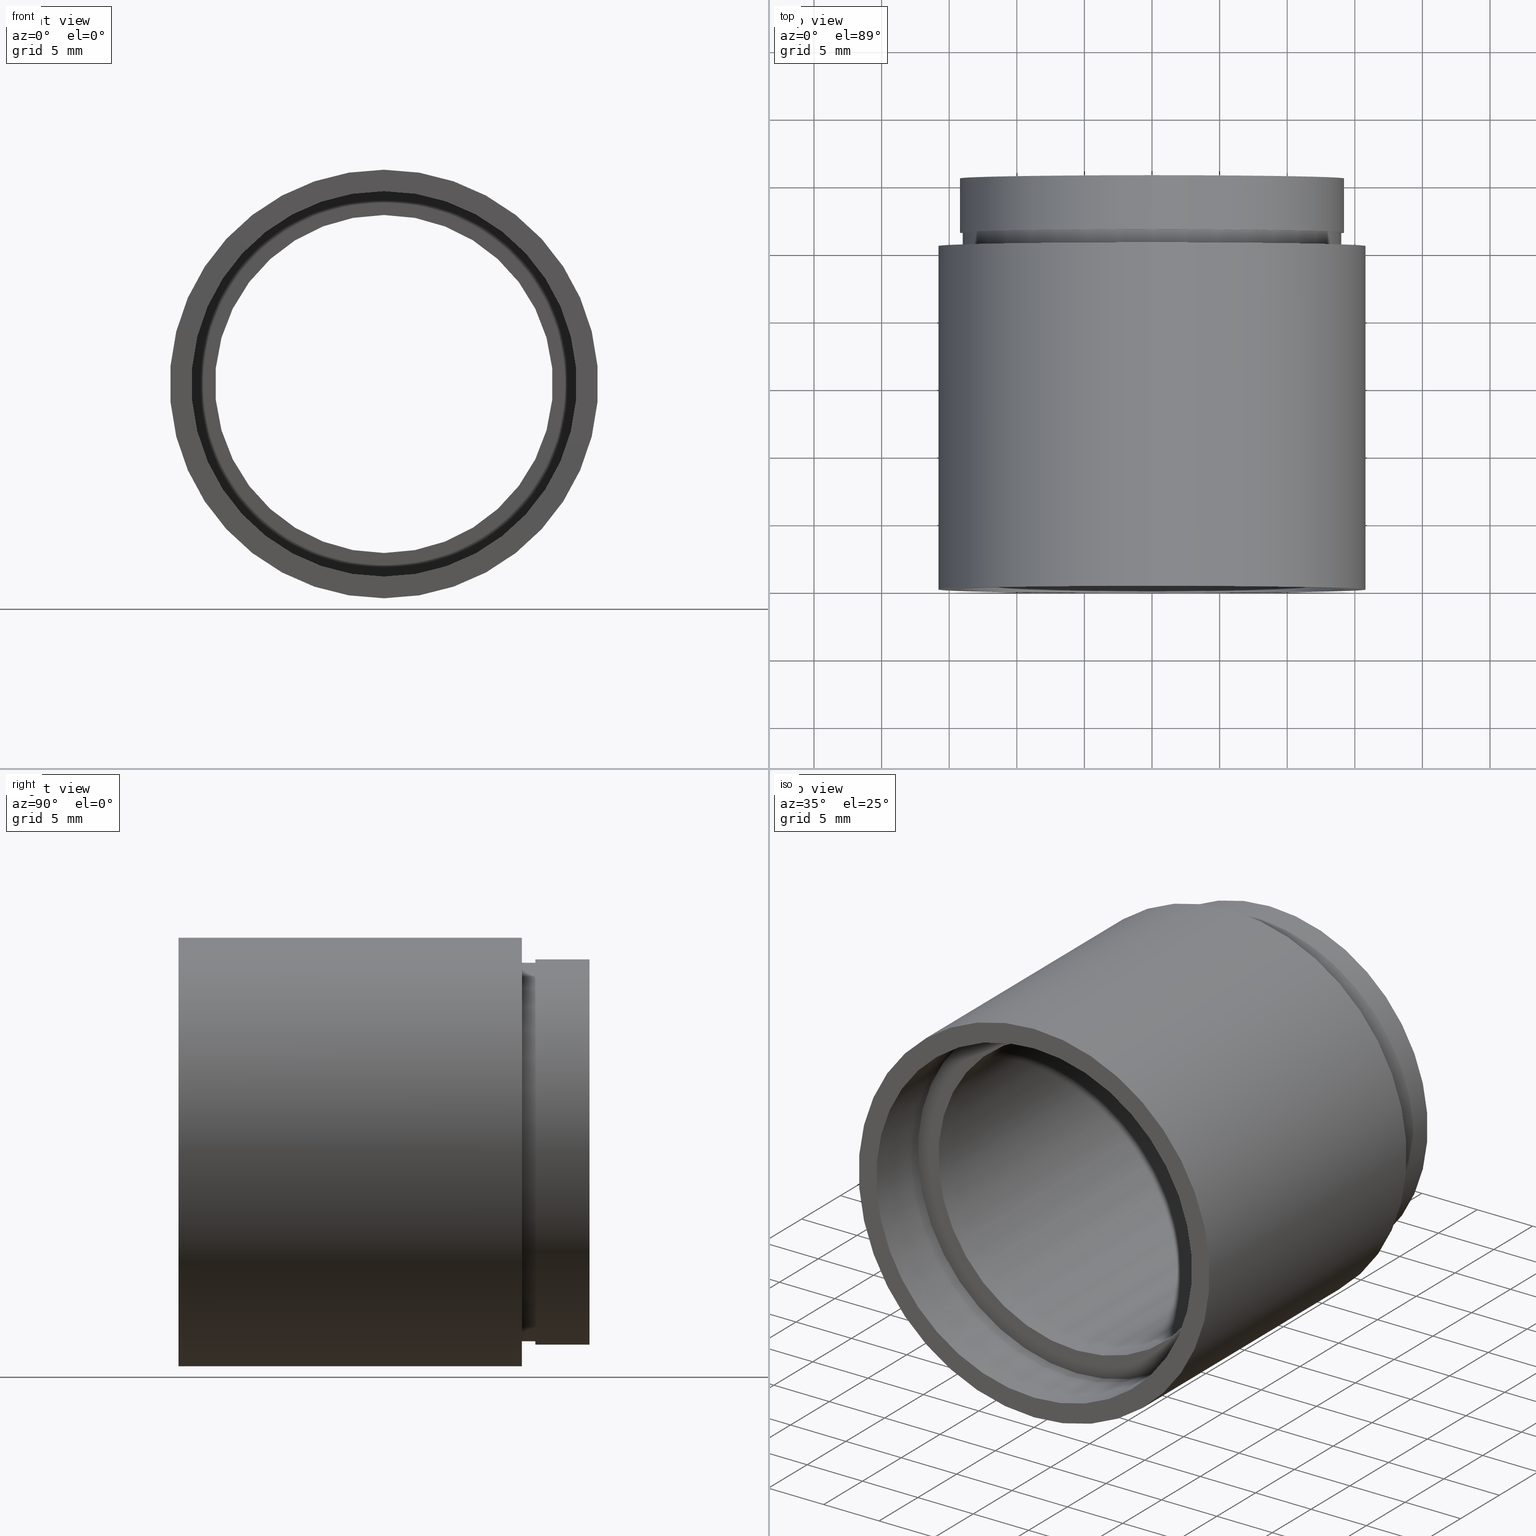
[diagram: canonical four-view strip — front | top / right | iso, engineering-drawing reading convention]
A machine part, canonical four-view strip (front | top / right | iso — engineering-drawing reading convention). The complete STEP part file that produces these views, byte-faithful:
ISO-10303-21;
HEADER;
FILE_DESCRIPTION (( 'STEP AP214' ),
    '1' );
FILE_NAME ('503047.STEP',
    '2019-09-06T06:18:34',
    ( '' ),
    ( '' ),
    'SwSTEP 2.0',
    'SolidWorks 2016',
    '' );
FILE_SCHEMA (( 'AUTOMOTIVE_DESIGN' ));
ENDSEC;

DATA;
#1 = FACE_OUTER_BOUND ( 'NONE', #2, .T. ) ;
#2 = EDGE_LOOP ( 'NONE', ( #51, #250, #337, #52 ) ) ;
#3 = CARTESIAN_POINT ( 'NONE',  ( 0.0000000000000000000, 25.39999999999997700, 0.0000000000000000000 ) ) ;
#4 = DIRECTION ( 'NONE',  ( 0.0000000000000000000, 0.0000000000000000000, 1.000000000000000000 ) ) ;
#5 = ORIENTED_EDGE ( 'NONE', *, *, #529, .F. ) ;
#6 = CARTESIAN_POINT ( 'NONE',  ( 1.745121688784980200E-015, 26.39999999999997700, -14.25000000000001600 ) ) ;
#7 = AXIS2_PLACEMENT_3D ( 'NONE', #320, #229, #574 ) ;
#8 = DIRECTION ( 'NONE',  ( -0.0000000000000000000, 1.000000000000000000, -0.0000000000000000000 ) ) ;
#9 = EDGE_CURVE ( 'NONE', #536, #546, #155, .T. ) ;
#10 = CARTESIAN_POINT ( 'NONE',  ( 0.0000000000000000000, 26.39999999999997700, 0.0000000000000000000 ) ) ;
#11 = ORIENTED_EDGE ( 'NONE', *, *, #190, .F. ) ;
#12 = CARTESIAN_POINT ( 'NONE',  ( 0.0000000000000000000, 26.39999999999997700, 14.25000000000001600 ) ) ;
#13 = ORIENTED_EDGE ( 'NONE', *, *, #104, .F. ) ;
#14 = DIRECTION ( 'NONE',  ( 0.0000000000000000000, 0.0000000000000000000, 1.000000000000000000 ) ) ;
#15 = CARTESIAN_POINT ( 'NONE',  ( 0.0000000000000000000, 161.3761669434274500, 0.0000000000000000000 ) ) ;
#16 = EDGE_CURVE ( 'NONE', #353, #343, #382, .T. ) ;
#17 = DIRECTION ( 'NONE',  ( 0.0000000000000000000, 0.0000000000000000000, 1.000000000000000000 ) ) ;
#18 = ORIENTED_EDGE ( 'NONE', *, *, #104, .T. ) ;
#19 = VERTEX_POINT ( 'NONE', #324 ) ;
#20 = FILL_AREA_STYLE_COLOUR ( '', #292 ) ;
#21 = UNCERTAINTY_MEASURE_WITH_UNIT (LENGTH_MEASURE( 1.000000000000000100E-005 ), #171, 'distance_accuracy_value', 'NONE');
#22 = EDGE_CURVE ( 'NONE', #592, #516, #286, .T. ) ;
#23 = CARTESIAN_POINT ( 'NONE',  ( 0.0000000000000000000, 30.39999999999998400, 0.0000000000000000000 ) ) ;
#24 = AXIS2_PLACEMENT_3D ( 'NONE', #102, #454, #594 ) ;
#25 = FACE_BOUND ( 'NONE', #526, .T. ) ;
#26 = MECHANICAL_DESIGN_GEOMETRIC_PRESENTATION_REPRESENTATION (  '', ( #333 ), #61 ) ;
#27 = ORIENTED_EDGE ( 'NONE', *, *, #70, .T. ) ;
#28 = VERTEX_POINT ( 'NONE', #281 ) ;
#29 = EDGE_CURVE ( 'NONE', #268, #328, #33, .T. ) ;
#30 = FACE_OUTER_BOUND ( 'NONE', #476, .T. ) ;
#31 = DIRECTION ( 'NONE',  ( -0.0000000000000000000, 1.000000000000000000, -0.0000000000000000000 ) ) ;
#32 = ADVANCED_FACE ( 'NONE', ( #398 ), #419, .F. ) ;
#33 = CIRCLE ( 'NONE', #89, 15.85000000000002100 ) ;
#34 = AXIS2_PLACEMENT_3D ( 'NONE', #351, #607, #608 ) ;
#35 = ORIENTED_EDGE ( 'NONE', *, *, #244, .F. ) ;
#36 = CARTESIAN_POINT ( 'NONE',  ( 0.0000000000000000000, 161.3761669434274500, 0.0000000000000000000 ) ) ;
#37 = VECTOR ( 'NONE', #602, 1000.000000000000000 ) ;
#38 = DIRECTION ( 'NONE',  ( 0.0000000000000000000, 0.0000000000000000000, 1.000000000000000000 ) ) ;
#39 = AXIS2_PLACEMENT_3D ( 'NONE', #472, #424, #231 ) ;
#40 = CARTESIAN_POINT ( 'NONE',  ( 1.530808498934193900E-015, 161.3761669434274500, -12.50000000000002000 ) ) ;
#41 = ADVANCED_FACE ( 'NONE', ( #507 ), #484, .F. ) ;
#42 = CIRCLE ( 'NONE', #313, 15.85000000000002100 ) ;
#43 = EDGE_LOOP ( 'NONE', ( #575, #124 ) ) ;
#44 = EDGE_CURVE ( 'NONE', #19, #28, #492, .T. ) ;
#45 = ORIENTED_EDGE ( 'NONE', *, *, #29, .T. ) ;
#46 =( LENGTH_UNIT ( ) NAMED_UNIT ( * ) SI_UNIT ( .MILLI., .METRE. ) );
#47 = CARTESIAN_POINT ( 'NONE',  ( 0.0000000000000000000, 161.3761669434274500, 0.0000000000000000000 ) ) ;
#48 = CIRCLE ( 'NONE', #214, 14.25000000000000000 ) ;
#49 =( NAMED_UNIT ( * ) PLANE_ANGLE_UNIT ( ) SI_UNIT ( $, .RADIAN. ) );
#50 =( NAMED_UNIT ( * ) SI_UNIT ( $, .STERADIAN. ) SOLID_ANGLE_UNIT ( ) );
#51 = ORIENTED_EDGE ( 'NONE', *, *, #127, .F. ) ;
#52 = ORIENTED_EDGE ( 'NONE', *, *, #460, .F. ) ;
#53 = AXIS2_PLACEMENT_3D ( 'NONE', #92, #522, #467 ) ;
#54 = CARTESIAN_POINT ( 'NONE',  ( 0.0000000000000000000, -2.775557561562891400E-014, 0.0000000000000000000 ) ) ;
#55 = CARTESIAN_POINT ( 'NONE',  ( 1.530808498934193900E-015, 30.39999999999998400, -12.50000000000002000 ) ) ;
#56 = DIRECTION ( 'NONE',  ( -0.0000000000000000000, 1.000000000000000000, -0.0000000000000000000 ) ) ;
#57 = AXIS2_PLACEMENT_3D ( 'NONE', #450, #158, #163 ) ;
#58 = FACE_OUTER_BOUND ( 'NONE', #329, .T. ) ;
#59 = VECTOR ( 'NONE', #519, 1000.000000000000000 ) ;
#60 = ORIENTED_EDGE ( 'NONE', *, *, #297, .T. ) ;
#61 =( GEOMETRIC_REPRESENTATION_CONTEXT ( 3 ) GLOBAL_UNCERTAINTY_ASSIGNED_CONTEXT ( ( #21 ) ) GLOBAL_UNIT_ASSIGNED_CONTEXT ( ( #171, #267, #368 ) ) REPRESENTATION_CONTEXT ( 'NONE', 'WORKASPACE' ) );
#62 = DIRECTION ( 'NONE',  ( -0.0000000000000000000, 1.000000000000000000, -0.0000000000000000000 ) ) ;
#63 = AXIS2_PLACEMENT_3D ( 'NONE', #96, #431, #483 ) ;
#64 = DIRECTION ( 'NONE',  ( 0.0000000000000000000, 0.0000000000000000000, 1.000000000000000000 ) ) ;
#65 = CYLINDRICAL_SURFACE ( 'NONE', #580, 14.35000000000001900 ) ;
#66 = PRESENTATION_STYLE_ASSIGNMENT (( #378 ) ) ;
#67 = ORIENTED_EDGE ( 'NONE', *, *, #244, .T. ) ;
#68 = CARTESIAN_POINT ( 'NONE',  ( 1.714505518806296600E-015, 161.3761669434274500, -14.00000000000001800 ) ) ;
#69 = ORIENTED_EDGE ( 'NONE', *, *, #103, .T. ) ;
#70 = EDGE_CURVE ( 'NONE', #261, #516, #275, .T. ) ;
#71 = LINE ( 'NONE', #470, #59 ) ;
#72 = FILL_AREA_STYLE ('',( #20 ) ) ;
#73 = ORIENTED_EDGE ( 'NONE', *, *, #323, .F. ) ;
#74 = VECTOR ( 'NONE', #597, 1000.000000000000000 ) ;
#75 = SURFACE_STYLE_FILL_AREA ( #543 ) ;
#76 =( NAMED_UNIT ( * ) SI_UNIT ( $, .STERADIAN. ) SOLID_ANGLE_UNIT ( ) );
#77 = EDGE_LOOP ( 'NONE', ( #528, #69, #493, #426 ) ) ;
#78 = EDGE_LOOP ( 'NONE', ( #361, #13, #27, #550 ) ) ;
#79 =( GEOMETRIC_REPRESENTATION_CONTEXT ( 3 ) GLOBAL_UNCERTAINTY_ASSIGNED_CONTEXT ( ( #439 ) ) GLOBAL_UNIT_ASSIGNED_CONTEXT ( ( #234, #138, #578 ) ) REPRESENTATION_CONTEXT ( 'NONE', 'WORKASPACE' ) );
#80 = LINE ( 'NONE', #506, #74 ) ;
#81 = FACE_BOUND ( 'NONE', #87, .T. ) ;
#82 = CARTESIAN_POINT ( 'NONE',  ( 1.745121688784980200E-015, 161.3761669434274500, -14.25000000000001600 ) ) ;
#83 = UNCERTAINTY_MEASURE_WITH_UNIT (LENGTH_MEASURE( 1.000000000000000100E-005 ), #364, 'distance_accuracy_value', 'NONE');
#84 = DIRECTION ( 'NONE',  ( -0.0000000000000000000, 1.000000000000000000, -0.0000000000000000000 ) ) ;
#85 = PRESENTATION_LAYER_ASSIGNMENT (  '', '', ( #202 ) ) ;
#86 = ADVANCED_FACE ( 'NONE', ( #120 ), #248, .F. ) ;
#87 = EDGE_LOOP ( 'NONE', ( #18, #570 ) ) ;
#88 = CARTESIAN_POINT ( 'NONE',  ( 0.0000000000000000000, 4.500000000000032000, 0.0000000000000000000 ) ) ;
#89 = AXIS2_PLACEMENT_3D ( 'NONE', #189, #288, #534 ) ;
#90 = DIRECTION ( 'NONE',  ( 0.0000000000000000000, -0.0000000000000000000, -1.000000000000000000 ) ) ;
#91 = CYLINDRICAL_SURFACE ( 'NONE', #408, 14.00000000000001800 ) ;
#92 = CARTESIAN_POINT ( 'NONE',  ( 0.0000000000000000000, 5.499999999999976900, 0.0000000000000000000 ) ) ;
#93 = EDGE_LOOP ( 'NONE', ( #373, #108 ) ) ;
#94 = DIRECTION ( 'NONE',  ( 0.0000000000000000000, 0.0000000000000000000, 1.000000000000000000 ) ) ;
#95 = PRESENTATION_LAYER_ASSIGNMENT (  '', '', ( #504 ) ) ;
#96 = CARTESIAN_POINT ( 'NONE',  ( 0.0000000000000000000, 161.3761669434274500, 0.0000000000000000000 ) ) ;
#97 = FILL_AREA_STYLE_COLOUR ( '', #177 ) ;
#98 = CIRCLE ( 'NONE', #24, 15.85000000000002100 ) ;
#99 = DIRECTION ( 'NONE',  ( 0.0000000000000000000, 0.0000000000000000000, 1.000000000000000000 ) ) ;
#100 = LINE ( 'NONE', #82, #193 ) ;
#101 =( NAMED_UNIT ( * ) PLANE_ANGLE_UNIT ( ) SI_UNIT ( $, .RADIAN. ) );
#102 = CARTESIAN_POINT ( 'NONE',  ( 0.0000000000000000000, -2.775557561562891400E-014, 0.0000000000000000000 ) ) ;
#103 = EDGE_CURVE ( 'NONE', #353, #243, #350, .T. ) ;
#104 = EDGE_CURVE ( 'NONE', #261, #485, #397, .T. ) ;
#105 = CARTESIAN_POINT ( 'NONE',  ( 0.0000000000000000000, 30.39999999999998400, 0.0000000000000000000 ) ) ;
#106 = COLOUR_RGB ( '',1.000000000000000000, 1.000000000000000000, 1.000000000000000000 ) ;
#107 = CARTESIAN_POINT ( 'NONE',  ( 0.0000000000000000000, 161.3761669434274500, 0.0000000000000000000 ) ) ;
#108 = ORIENTED_EDGE ( 'NONE', *, *, #176, .F. ) ;
#109 = CARTESIAN_POINT ( 'NONE',  ( 1.714505518806296600E-015, 25.39999999999997700, -14.00000000000001800 ) ) ;
#110 =( GEOMETRIC_REPRESENTATION_CONTEXT ( 3 ) GLOBAL_UNCERTAINTY_ASSIGNED_CONTEXT ( ( #331 ) ) GLOBAL_UNIT_ASSIGNED_CONTEXT ( ( #335, #101, #50 ) ) REPRESENTATION_CONTEXT ( 'NONE', 'WORKASPACE' ) );
#111 =( NAMED_UNIT ( * ) SI_UNIT ( $, .STERADIAN. ) SOLID_ANGLE_UNIT ( ) );
#112 = VECTOR ( 'NONE', #386, 1000.000000000000000 ) ;
#113 =( NAMED_UNIT ( * ) PLANE_ANGLE_UNIT ( ) SI_UNIT ( $, .RADIAN. ) );
#114 = ORIENTED_EDGE ( 'NONE', *, *, #603, .T. ) ;
#115 = EDGE_CURVE ( 'NONE', #546, #536, #464, .T. ) ;
#116 = CIRCLE ( 'NONE', #258, 14.35000000000001900 ) ;
#117 =( LENGTH_UNIT ( ) NAMED_UNIT ( * ) SI_UNIT ( .MILLI., .METRE. ) );
#118 = AXIS2_PLACEMENT_3D ( 'NONE', #88, #226, #223 ) ;
#119 = SURFACE_SIDE_STYLE ('',( #513 ) ) ;
#120 = FACE_OUTER_BOUND ( 'NONE', #367, .T. ) ;
#121 = ADVANCED_FACE ( 'NONE', ( #1 ), #139, .T. ) ;
#122 = ORIENTED_EDGE ( 'NONE', *, *, #44, .F. ) ;
#123 = DIRECTION ( 'NONE',  ( -0.0000000000000000000, 1.000000000000000000, -0.0000000000000000000 ) ) ;
#124 = ORIENTED_EDGE ( 'NONE', *, *, #16, .T. ) ;
#125 = UNCERTAINTY_MEASURE_WITH_UNIT (LENGTH_MEASURE( 1.000000000000000100E-005 ), #46, 'distance_accuracy_value', 'NONE');
#126 = LINE ( 'NONE', #509, #565 ) ;
#127 = EDGE_CURVE ( 'NONE', #503, #289, #100, .T. ) ;
#128 = DIRECTION ( 'NONE',  ( -0.0000000000000000000, 1.000000000000000000, 0.0000000000000000000 ) ) ;
#129 = CIRCLE ( 'NONE', #39, 12.50000000000002000 ) ;
#130 = FILL_AREA_STYLE_COLOUR ( '', #106 ) ;
#131 = EDGE_CURVE ( 'NONE', #422, #619, #116, .T. ) ;
#132 = ORIENTED_EDGE ( 'NONE', *, *, #560, .F. ) ;
#133 = ORIENTED_EDGE ( 'NONE', *, *, #480, .T. ) ;
#134 = DIRECTION ( 'NONE',  ( 0.0000000000000000000, -1.000000000000000000, 0.0000000000000000000 ) ) ;
#135 = CARTESIAN_POINT ( 'NONE',  ( 0.0000000000000000000, 4.500000000000032000, 0.0000000000000000000 ) ) ;
#136 = FILL_AREA_STYLE_COLOUR ( '', #237 ) ;
#137 = CIRCLE ( 'NONE', #440, 14.35000000000001900 ) ;
#138 =( NAMED_UNIT ( * ) PLANE_ANGLE_UNIT ( ) SI_UNIT ( $, .RADIAN. ) );
#139 = CYLINDRICAL_SURFACE ( 'NONE', #402, 14.25000000000001600 ) ;
#140 = ORIENTED_EDGE ( 'NONE', *, *, #131, .T. ) ;
#141 = DIRECTION ( 'NONE',  ( 0.0000000000000000000, 0.0000000000000000000, 1.000000000000000000 ) ) ;
#142 = AXIS2_PLACEMENT_3D ( 'NONE', #242, #477, #282 ) ;
#143 = LINE ( 'NONE', #447, #553 ) ;
#144 = EDGE_CURVE ( 'NONE', #343, #353, #618, .T. ) ;
#145 = DIRECTION ( 'NONE',  ( 0.0000000000000000000, -1.000000000000000000, 0.0000000000000000000 ) ) ;
#146 = PRESENTATION_STYLE_ASSIGNMENT (( #254 ) ) ;
#147 = DIRECTION ( 'NONE',  ( 0.0000000000000000000, 0.0000000000000000000, 1.000000000000000000 ) ) ;
#148 = COLOUR_RGB ( '',1.000000000000000000, 1.000000000000000000, 1.000000000000000000 ) ;
#149 = ORIENTED_EDGE ( 'NONE', *, *, #44, .T. ) ;
#150 = EDGE_LOOP ( 'NONE', ( #5, #515, #360, #421 ) ) ;
#151 = AXIS2_PLACEMENT_3D ( 'NONE', #417, #278, #468 ) ;
#152 = FACE_BOUND ( 'NONE', #43, .T. ) ;
#153 = CYLINDRICAL_SURFACE ( 'NONE', #390, 14.25000000000000000 ) ;
#154 =( LENGTH_UNIT ( ) NAMED_UNIT ( * ) SI_UNIT ( .MILLI., .METRE. ) );
#155 = CIRCLE ( 'NONE', #7, 14.00000000000001800 ) ;
#156 = ORIENTED_EDGE ( 'NONE', *, *, #144, .F. ) ;
#157 = EDGE_CURVE ( 'NONE', #516, #592, #239, .T. ) ;
#158 = DIRECTION ( 'NONE',  ( -0.0000000000000000000, 1.000000000000000000, -0.0000000000000000000 ) ) ;
#159 = COLOUR_RGB ( '',1.000000000000000000, 1.000000000000000000, 1.000000000000000000 ) ;
#160 = EDGE_CURVE ( 'NONE', #422, #265, #71, .T. ) ;
#161 = CARTESIAN_POINT ( 'NONE',  ( 0.0000000000000000000, 161.3761669434274500, 14.25000000000001600 ) ) ;
#162 = SURFACE_STYLE_FILL_AREA ( #198 ) ;
#163 = DIRECTION ( 'NONE',  ( 0.0000000000000000000, 0.0000000000000000000, 1.000000000000000000 ) ) ;
#164 = ORIENTED_EDGE ( 'NONE', *, *, #455, .F. ) ;
#165 = CLOSED_SHELL ( 'NONE', ( #220, #86, #32, #572, #423, #321, #216, #271, #225, #614, #369, #121, #521, #371, #416, #263, #413, #41 ) ) ;
#166 = LINE ( 'NONE', #68, #199 ) ;
#167 = APPLICATION_PROTOCOL_DEFINITION ( 'draft international standard', 'automotive_design', 1998, #215 ) ;
#168 = ORIENTED_EDGE ( 'NONE', *, *, #590, .T. ) ;
#169 = ORIENTED_EDGE ( 'NONE', *, *, #327, .F. ) ;
#170 = PRODUCT_DEFINITION_SHAPE ( 'NONE', 'NONE',  #279 ) ;
#171 =( LENGTH_UNIT ( ) NAMED_UNIT ( * ) SI_UNIT ( .MILLI., .METRE. ) );
#172 = PRESENTATION_LAYER_ASSIGNMENT (  '', '', ( #443 ) ) ;
#173 = SURFACE_STYLE_USAGE ( .BOTH. , #462 ) ;
#174 = CARTESIAN_POINT ( 'NONE',  ( 0.0000000000000000000, 5.499999999999976900, 0.0000000000000000000 ) ) ;
#175 = FACE_OUTER_BOUND ( 'NONE', #451, .T. ) ;
#176 = EDGE_CURVE ( 'NONE', #503, #508, #228, .T. ) ;
#177 = COLOUR_RGB ( '',1.000000000000000000, 1.000000000000000000, 1.000000000000000000 ) ;
#178 = EDGE_LOOP ( 'NONE', ( #45, #495 ) ) ;
#179 = DIRECTION ( 'NONE',  ( 0.0000000000000000000, 0.0000000000000000000, 1.000000000000000000 ) ) ;
#180 = VERTEX_POINT ( 'NONE', #270 ) ;
#181 = DIRECTION ( 'NONE',  ( -0.0000000000000000000, 1.000000000000000000, -0.0000000000000000000 ) ) ;
#182 = AXIS2_PLACEMENT_3D ( 'NONE', #514, #128, #179 ) ;
#183 = CARTESIAN_POINT ( 'NONE',  ( 0.0000000000000000000, 161.3761669434274500, 0.0000000000000000000 ) ) ;
#184 = DIRECTION ( 'NONE',  ( -0.0000000000000000000, 1.000000000000000000, -0.0000000000000000000 ) ) ;
#185 = COLOUR_RGB ( '',1.000000000000000000, 1.000000000000000000, 1.000000000000000000 ) ;
#186 = DIRECTION ( 'NONE',  ( -0.0000000000000000000, 1.000000000000000000, -0.0000000000000000000 ) ) ;
#187 = CARTESIAN_POINT ( 'NONE',  ( 0.0000000000000000000, 5.499999999999976900, 0.0000000000000000000 ) ) ;
#188 = ORIENTED_EDGE ( 'NONE', *, *, #359, .F. ) ;
#189 = CARTESIAN_POINT ( 'NONE',  ( 0.0000000000000000000, 25.39999999999997700, 0.0000000000000000000 ) ) ;
#190 = EDGE_CURVE ( 'NONE', #28, #268, #285, .T. ) ;
#191 = STYLED_ITEM ( 'NONE', ( #401 ), #305 ) ;
#192 = CARTESIAN_POINT ( 'NONE',  ( 0.0000000000000000000, 25.39999999999997700, 15.85000000000002100 ) ) ;
#193 = VECTOR ( 'NONE', #523, 1000.000000000000000 ) ;
#194 = DIRECTION ( 'NONE',  ( -0.0000000000000000000, 1.000000000000000000, -0.0000000000000000000 ) ) ;
#195 = STYLED_ITEM ( 'NONE', ( #599 ), #41 ) ;
#196 = EDGE_LOOP ( 'NONE', ( #222, #295, #428, #11 ) ) ;
#197 = CARTESIAN_POINT ( 'NONE',  ( 0.0000000000000000000, 30.39999999999998400, 0.0000000000000000000 ) ) ;
#198 = FILL_AREA_STYLE ('',( #136 ) ) ;
#199 = VECTOR ( 'NONE', #355, 1000.000000000000000 ) ;
#200 = EDGE_LOOP ( 'NONE', ( #168, #314, #132, #586 ) ) ;
#201 = DIRECTION ( 'NONE',  ( -0.0000000000000000000, 1.000000000000000000, -0.0000000000000000000 ) ) ;
#202 = STYLED_ITEM ( 'NONE', ( #146 ), #583 ) ;
#203 = SURFACE_STYLE_FILL_AREA ( #457 ) ;
#204 = SURFACE_SIDE_STYLE ('',( #274 ) ) ;
#205 = AXIS2_PLACEMENT_3D ( 'NONE', #530, #280, #576 ) ;
#206 = PLANE ( 'NONE',  #309 ) ;
#207 = FACE_OUTER_BOUND ( 'NONE', #562, .T. ) ;
#208 = CARTESIAN_POINT ( 'NONE',  ( 0.0000000000000000000, 26.39999999999997700, 0.0000000000000000000 ) ) ;
#209 = DIRECTION ( 'NONE',  ( 0.0000000000000000000, 0.0000000000000000000, 1.000000000000000000 ) ) ;
#210 = MECHANICAL_DESIGN_GEOMETRIC_PRESENTATION_REPRESENTATION (  '', ( #555 ), #596 ) ;
#211 = SURFACE_SIDE_STYLE ('',( #409 ) ) ;
#212 = AXIS2_PLACEMENT_3D ( 'NONE', #489, #8, #494 ) ;
#213 = ORIENTED_EDGE ( 'NONE', *, *, #160, .F. ) ;
#214 = AXIS2_PLACEMENT_3D ( 'NONE', #380, #184, #99 ) ;
#215 = APPLICATION_CONTEXT ( 'automotive_design' ) ;
#216 = ADVANCED_FACE ( 'NONE', ( #319, #81 ), #615, .F. ) ;
#217 = FILL_AREA_STYLE ('',( #318 ) ) ;
#218 = FACE_OUTER_BOUND ( 'NONE', #383, .T. ) ;
#219 = PRODUCT_CONTEXT ( 'NONE', #215, 'mechanical' ) ;
#220 = ADVANCED_FACE ( 'NONE', ( #207 ), #153, .F. ) ;
#221 = ORIENTED_EDGE ( 'NONE', *, *, #525, .F. ) ;
#222 = ORIENTED_EDGE ( 'NONE', *, *, #497, .T. ) ;
#223 = DIRECTION ( 'NONE',  ( 0.0000000000000000000, 0.0000000000000000000, 1.000000000000000000 ) ) ;
#224 = AXIS2_PLACEMENT_3D ( 'NONE', #372, #520, #38 ) ;
#225 = ADVANCED_FACE ( 'NONE', ( #25, #405 ), #332, .F. ) ;
#226 = DIRECTION ( 'NONE',  ( -0.0000000000000000000, 1.000000000000000000, -0.0000000000000000000 ) ) ;
#227 = SURFACE_STYLE_USAGE ( .BOTH. , #527 ) ;
#228 = CIRCLE ( 'NONE', #151, 14.25000000000001600 ) ;
#229 = DIRECTION ( 'NONE',  ( -0.0000000000000000000, 1.000000000000000000, -0.0000000000000000000 ) ) ;
#230 = ORIENTED_EDGE ( 'NONE', *, *, #272, .F. ) ;
#231 = DIRECTION ( 'NONE',  ( 0.0000000000000000000, 0.0000000000000000000, 1.000000000000000000 ) ) ;
#232 = DIRECTION ( 'NONE',  ( -0.0000000000000000000, 1.000000000000000000, -0.0000000000000000000 ) ) ;
#233 = MECHANICAL_DESIGN_GEOMETRIC_PRESENTATION_REPRESENTATION (  '', ( #191 ), #623 ) ;
#234 =( LENGTH_UNIT ( ) NAMED_UNIT ( * ) SI_UNIT ( .MILLI., .METRE. ) );
#235 = CARTESIAN_POINT ( 'NONE',  ( 14.00000000000001800, 25.39999999999998100, 0.0000000000000000000 ) ) ;
#236 = CARTESIAN_POINT ( 'NONE',  ( 0.0000000000000000000, 161.3761669434274500, 14.25000000000000000 ) ) ;
#237 = COLOUR_RGB ( '',1.000000000000000000, 1.000000000000000000, 1.000000000000000000 ) ;
#238 = AXIS2_PLACEMENT_3D ( 'NONE', #316, #415, #571 ) ;
#239 = CIRCLE ( 'NONE', #118, 14.25000000000000000 ) ;
#240 = DIRECTION ( 'NONE',  ( 0.0000000000000000000, 0.0000000000000000000, 1.000000000000000000 ) ) ;
#241 = VERTEX_POINT ( 'NONE', #620 ) ;
#242 = CARTESIAN_POINT ( 'NONE',  ( 0.0000000000000000000, 161.3761669434274500, 0.0000000000000000000 ) ) ;
#243 = VERTEX_POINT ( 'NONE', #55 ) ;
#244 = EDGE_CURVE ( 'NONE', #375, #243, #129, .T. ) ;
#245 = DIRECTION ( 'NONE',  ( 0.0000000000000000000, 0.0000000000000000000, 1.000000000000000000 ) ) ;
#246 = PRESENTATION_LAYER_ASSIGNMENT (  '', '', ( #191 ) ) ;
#247 = CARTESIAN_POINT ( 'NONE',  ( 0.0000000000000000000, 30.39999999999998400, 12.50000000000002000 ) ) ;
#248 = CYLINDRICAL_SURFACE ( 'NONE', #303, 14.35000000000001900 ) ;
#249 = CARTESIAN_POINT ( 'NONE',  ( 1.714505518806296600E-015, 26.39999999999997700, -14.00000000000001800 ) ) ;
#250 = ORIENTED_EDGE ( 'NONE', *, *, #176, .T. ) ;
#251 = PLANE ( 'NONE',  #317 ) ;
#252 = AXIS2_PLACEMENT_3D ( 'NONE', #235, #134, #90 ) ;
#253 = EDGE_LOOP ( 'NONE', ( #502, #149, #466, #188 ) ) ;
#254 = SURFACE_STYLE_USAGE ( .BOTH. , #204 ) ;
#255 = AXIS2_PLACEMENT_3D ( 'NONE', #105, #341, #64 ) ;
#256 = ORIENTED_EDGE ( 'NONE', *, *, #525, .T. ) ;
#257 = CARTESIAN_POINT ( 'NONE',  ( 12.50000000000002000, 30.39999999999998400, 0.0000000000000000000 ) ) ;
#258 = AXIS2_PLACEMENT_3D ( 'NONE', #465, #325, #365 ) ;
#259 = DIRECTION ( 'NONE',  ( -0.0000000000000000000, 1.000000000000000000, -0.0000000000000000000 ) ) ;
#260 = UNCERTAINTY_MEASURE_WITH_UNIT (LENGTH_MEASURE( 1.000000000000000100E-005 ), #438, 'distance_accuracy_value', 'NONE');
#261 = VERTEX_POINT ( 'NONE', #622 ) ;
#262 = DIRECTION ( 'NONE',  ( -0.0000000000000000000, 1.000000000000000000, -0.0000000000000000000 ) ) ;
#263 = ADVANCED_FACE ( 'NONE', ( #58 ), #65, .F. ) ;
#264 =( NAMED_UNIT ( * ) PLANE_ANGLE_UNIT ( ) SI_UNIT ( $, .RADIAN. ) );
#265 = VERTEX_POINT ( 'NONE', #374 ) ;
#266 = ORIENTED_EDGE ( 'NONE', *, *, #529, .T. ) ;
#267 =( NAMED_UNIT ( * ) PLANE_ANGLE_UNIT ( ) SI_UNIT ( $, .RADIAN. ) );
#268 = VERTEX_POINT ( 'NONE', #192 ) ;
#269 = AXIS2_PLACEMENT_3D ( 'NONE', #183, #84, #4 ) ;
#270 = CARTESIAN_POINT ( 'NONE',  ( 0.0000000000000000000, 26.39999999999997700, 14.00000000000001800 ) ) ;
#271 = ADVANCED_FACE ( 'NONE', ( #561 ), #349, .T. ) ;
#272 = EDGE_CURVE ( 'NONE', #485, #261, #48, .T. ) ;
#273 = AXIS2_PLACEMENT_3D ( 'NONE', #197, #340, #147 ) ;
#274 = SURFACE_STYLE_FILL_AREA ( #601 ) ;
#275 = LINE ( 'NONE', #236, #112 ) ;
#276 = DIRECTION ( 'NONE',  ( 0.0000000000000000000, 0.0000000000000000000, 1.000000000000000000 ) ) ;
#277 = ORIENTED_EDGE ( 'NONE', *, *, #157, .F. ) ;
#278 = DIRECTION ( 'NONE',  ( -0.0000000000000000000, 1.000000000000000000, -0.0000000000000000000 ) ) ;
#279 = PRODUCT_DEFINITION ( 'δ֪', '', #339, #593 ) ;
#280 = DIRECTION ( 'NONE',  ( -0.0000000000000000000, 1.000000000000000000, -0.0000000000000000000 ) ) ;
#281 = CARTESIAN_POINT ( 'NONE',  ( 0.0000000000000000000, -2.775557561562891400E-014, 15.85000000000002100 ) ) ;
#282 = DIRECTION ( 'NONE',  ( 0.0000000000000000000, 0.0000000000000000000, 1.000000000000000000 ) ) ;
#283 = AXIS2_PLACEMENT_3D ( 'NONE', #187, #384, #579 ) ;
#284 = FILL_AREA_STYLE ('',( #97 ) ) ;
#285 = LINE ( 'NONE', #609, #449 ) ;
#286 = CIRCLE ( 'NONE', #587, 14.25000000000000000 ) ;
#287 = CARTESIAN_POINT ( 'NONE',  ( 1.530808498934193900E-015, 5.499999999999976900, -12.50000000000002000 ) ) ;
#288 = DIRECTION ( 'NONE',  ( -0.0000000000000000000, 1.000000000000000000, -0.0000000000000000000 ) ) ;
#289 = VERTEX_POINT ( 'NONE', #585 ) ;
#290 = LINE ( 'NONE', #161, #37 ) ;
#291 = CARTESIAN_POINT ( 'NONE',  ( 1.941065176648557100E-015, 161.3761669434274500, -15.85000000000002100 ) ) ;
#292 = COLOUR_RGB ( '',1.000000000000000000, 1.000000000000000000, 1.000000000000000000 ) ;
#293 = DIRECTION ( 'NONE',  ( 0.0000000000000000000, 0.0000000000000000000, 1.000000000000000000 ) ) ;
#294 = MECHANICAL_DESIGN_GEOMETRIC_PRESENTATION_REPRESENTATION (  '', ( #600 ), #356 ) ;
#295 = ORIENTED_EDGE ( 'NONE', *, *, #453, .T. ) ;
#296 = ORIENTED_EDGE ( 'NONE', *, *, #131, .F. ) ;
#297 = EDGE_CURVE ( 'NONE', #343, #375, #511, .T. ) ;
#298 = CARTESIAN_POINT ( 'NONE',  ( 14.25000000000000000, 4.500000000000008000, 0.0000000000000000000 ) ) ;
#299 = SURFACE_STYLE_USAGE ( .BOTH. , #393 ) ;
#300 = DIRECTION ( 'NONE',  ( 0.0000000000000000000, -0.0000000000000000000, -1.000000000000000000 ) ) ;
#301 = ORIENTED_EDGE ( 'NONE', *, *, #70, .F. ) ;
#302 = DIRECTION ( 'NONE',  ( -0.0000000000000000000, 1.000000000000000000, -0.0000000000000000000 ) ) ;
#303 = AXIS2_PLACEMENT_3D ( 'NONE', #381, #539, #240 ) ;
#304 = DIRECTION ( 'NONE',  ( 0.0000000000000000000, -1.000000000000000000, 0.0000000000000000000 ) ) ;
#305 = ADVANCED_BREP_SHAPE_REPRESENTATION ( '503047', ( #583, #34 ), #461 ) ;
#306 = SURFACE_STYLE_USAGE ( .BOTH. , #211 ) ;
#307 = FILL_AREA_STYLE_COLOUR ( '', #159 ) ;
#308 = ORIENTED_EDGE ( 'NONE', *, *, #115, .T. ) ;
#309 = AXIS2_PLACEMENT_3D ( 'NONE', #257, #304, #300 ) ;
#310 = APPLICATION_CONTEXT ( 'automotive_design' ) ;
#311 = APPLICATION_PROTOCOL_DEFINITION ( 'draft international standard', 'automotive_design', 1998, #310 ) ;
#312 = EDGE_LOOP ( 'NONE', ( #73, #169 ) ) ;
#313 = AXIS2_PLACEMENT_3D ( 'NONE', #3, #56, #293 ) ;
#314 = ORIENTED_EDGE ( 'NONE', *, *, #127, .T. ) ;
#315 = CARTESIAN_POINT ( 'NONE',  ( 0.0000000000000000000, 161.3761669434274500, 0.0000000000000000000 ) ) ;
#316 = CARTESIAN_POINT ( 'NONE',  ( 0.0000000000000000000, 2.775557561562891400E-014, 0.0000000000000000000 ) ) ;
#317 = AXIS2_PLACEMENT_3D ( 'NONE', #336, #441, #14 ) ;
#318 = FILL_AREA_STYLE_COLOUR ( '', #148 ) ;
#319 = FACE_OUTER_BOUND ( 'NONE', #556, .T. ) ;
#320 = CARTESIAN_POINT ( 'NONE',  ( 0.0000000000000000000, 25.39999999999997700, 0.0000000000000000000 ) ) ;
#321 = ADVANCED_FACE ( 'NONE', ( #549 ), #584, .T. ) ;
#322 = EDGE_LOOP ( 'NONE', ( #35, #164 ) ) ;
#323 = EDGE_CURVE ( 'NONE', #241, #265, #589, .T. ) ;
#324 = CARTESIAN_POINT ( 'NONE',  ( 1.941065176648557100E-015, -2.775557561562891400E-014, -15.85000000000002100 ) ) ;
#325 = DIRECTION ( 'NONE',  ( -0.0000000000000000000, 1.000000000000000000, -0.0000000000000000000 ) ) ;
#326 = CARTESIAN_POINT ( 'NONE',  ( 0.0000000000000000000, 161.3761669434274500, 12.50000000000002000 ) ) ;
#327 = EDGE_CURVE ( 'NONE', #265, #241, #342, .T. ) ;
#328 = VERTEX_POINT ( 'NONE', #532 ) ;
#329 = EDGE_LOOP ( 'NONE', ( #213, #577, #114, #518 ) ) ;
#330 = SURFACE_STYLE_USAGE ( .BOTH. , #621 ) ;
#331 = UNCERTAINTY_MEASURE_WITH_UNIT (LENGTH_MEASURE( 1.000000000000000100E-005 ), #335, 'distance_accuracy_value', 'NONE');
#332 = PLANE ( 'NONE',  #252 ) ;
#333 = STYLED_ITEM ( 'NONE', ( #533 ), #121 ) ;
#334 = PRESENTATION_STYLE_ASSIGNMENT (( #299 ) ) ;
#335 =( LENGTH_UNIT ( ) NAMED_UNIT ( * ) SI_UNIT ( .MILLI., .METRE. ) );
#336 = CARTESIAN_POINT ( 'NONE',  ( 12.50000000000002000, 5.499999999999984000, 0.0000000000000000000 ) ) ;
#337 = ORIENTED_EDGE ( 'NONE', *, *, #611, .T. ) ;
#338 = CARTESIAN_POINT ( 'NONE',  ( 1.745121688784978200E-015, 2.775557561562891400E-014, -14.25000000000000000 ) ) ;
#339 = PRODUCT_DEFINITION_FORMATION_WITH_SPECIFIED_SOURCE ( '�κ�', '', #616, .NOT_KNOWN. ) ;
#340 = DIRECTION ( 'NONE',  ( -0.0000000000000000000, 1.000000000000000000, -0.0000000000000000000 ) ) ;
#341 = DIRECTION ( 'NONE',  ( -0.0000000000000000000, 1.000000000000000000, -0.0000000000000000000 ) ) ;
#342 = CIRCLE ( 'NONE', #433, 14.35000000000001900 ) ;
#343 = VERTEX_POINT ( 'NONE', #430 ) ;
#344 = CARTESIAN_POINT ( 'NONE',  ( 1.757368156776454300E-015, 4.499999999999976000, -14.35000000000001900 ) ) ;
#345 = VERTEX_POINT ( 'NONE', #481 ) ;
#346 = CYLINDRICAL_SURFACE ( 'NONE', #370, 14.00000000000001800 ) ;
#347 = AXIS2_PLACEMENT_3D ( 'NONE', #174, #569, #566 ) ;
#348 = DIRECTION ( 'NONE',  ( 0.0000000000000000000, 0.0000000000000000000, 1.000000000000000000 ) ) ;
#349 = CYLINDRICAL_SURFACE ( 'NONE', #142, 15.85000000000002100 ) ;
#350 = LINE ( 'NONE', #40, #358 ) ;
#351 = CARTESIAN_POINT ( 'NONE',  ( 0.0000000000000000000, 0.0000000000000000000, 0.0000000000000000000 ) ) ;
#352 = AXIS2_PLACEMENT_3D ( 'NONE', #15, #406, #209 ) ;
#353 = VERTEX_POINT ( 'NONE', #287 ) ;
#354 = ORIENTED_EDGE ( 'NONE', *, *, #103, .F. ) ;
#355 = DIRECTION ( 'NONE',  ( -0.0000000000000000000, 1.000000000000000000, -0.0000000000000000000 ) ) ;
#356 =( GEOMETRIC_REPRESENTATION_CONTEXT ( 3 ) GLOBAL_UNCERTAINTY_ASSIGNED_CONTEXT ( ( #125 ) ) GLOBAL_UNIT_ASSIGNED_CONTEXT ( ( #46, #49, #425 ) ) REPRESENTATION_CONTEXT ( 'NONE', 'WORKASPACE' ) );
#357 = CARTESIAN_POINT ( 'NONE',  ( 0.0000000000000000000, 161.3761669434274500, 0.0000000000000000000 ) ) ;
#358 = VECTOR ( 'NONE', #181, 1000.000000000000000 ) ;
#359 = EDGE_CURVE ( 'NONE', #328, #268, #42, .T. ) ;
#360 = ORIENTED_EDGE ( 'NONE', *, *, #554, .T. ) ;
#361 = ORIENTED_EDGE ( 'NONE', *, *, #617, .F. ) ;
#362 = MECHANICAL_DESIGN_GEOMETRIC_PRESENTATION_REPRESENTATION (  '', ( #202 ), #429 ) ;
#363 = FACE_OUTER_BOUND ( 'NONE', #200, .T. ) ;
#364 =( LENGTH_UNIT ( ) NAMED_UNIT ( * ) SI_UNIT ( .MILLI., .METRE. ) );
#365 = DIRECTION ( 'NONE',  ( 0.0000000000000000000, 0.0000000000000000000, 1.000000000000000000 ) ) ;
#366 = PRESENTATION_LAYER_ASSIGNMENT (  '', '', ( #600 ) ) ;
#367 = EDGE_LOOP ( 'NONE', ( #296, #385, #391, #437 ) ) ;
#368 =( NAMED_UNIT ( * ) SI_UNIT ( $, .STERADIAN. ) SOLID_ANGLE_UNIT ( ) );
#369 = ADVANCED_FACE ( 'NONE', ( #624, #379 ), #537, .F. ) ;
#370 = AXIS2_PLACEMENT_3D ( 'NONE', #357, #595, #348 ) ;
#371 = ADVANCED_FACE ( 'NONE', ( #218 ), #434, .F. ) ;
#372 = CARTESIAN_POINT ( 'NONE',  ( 0.0000000000000000000, 25.39999999999997700, 0.0000000000000000000 ) ) ;
#373 = ORIENTED_EDGE ( 'NONE', *, *, #590, .F. ) ;
#374 = CARTESIAN_POINT ( 'NONE',  ( 1.757368156776454300E-015, 5.499999999999976900, -14.35000000000001900 ) ) ;
#375 = VERTEX_POINT ( 'NONE', #247 ) ;
#376 = DIRECTION ( 'NONE',  ( -0.0000000000000000000, 1.000000000000000000, -0.0000000000000000000 ) ) ;
#377 = DIRECTION ( 'NONE',  ( -0.0000000000000000000, 1.000000000000000000, -0.0000000000000000000 ) ) ;
#378 = SURFACE_STYLE_USAGE ( .BOTH. , #581 ) ;
#379 = FACE_BOUND ( 'NONE', #487, .T. ) ;
#380 = CARTESIAN_POINT ( 'NONE',  ( 0.0000000000000000000, 2.775557561562891400E-014, 0.0000000000000000000 ) ) ;
#381 = CARTESIAN_POINT ( 'NONE',  ( 0.0000000000000000000, 161.3761669434274500, 0.0000000000000000000 ) ) ;
#382 = CIRCLE ( 'NONE', #53, 12.50000000000002000 ) ;
#383 = EDGE_LOOP ( 'NONE', ( #354, #156, #60, #67 ) ) ;
#384 = DIRECTION ( 'NONE',  ( -0.0000000000000000000, 1.000000000000000000, -0.0000000000000000000 ) ) ;
#385 = ORIENTED_EDGE ( 'NONE', *, *, #160, .T. ) ;
#386 = DIRECTION ( 'NONE',  ( -0.0000000000000000000, 1.000000000000000000, -0.0000000000000000000 ) ) ;
#387 = FACE_OUTER_BOUND ( 'NONE', #150, .T. ) ;
#388 = DIRECTION ( 'NONE',  ( 0.0000000000000000000, 0.0000000000000000000, 1.000000000000000000 ) ) ;
#389 = CARTESIAN_POINT ( 'NONE',  ( 0.0000000000000000000, 4.500000000000032000, 14.25000000000000000 ) ) ;
#390 = AXIS2_PLACEMENT_3D ( 'NONE', #315, #31, #94 ) ;
#391 = ORIENTED_EDGE ( 'NONE', *, *, #327, .T. ) ;
#392 = DIRECTION ( 'NONE',  ( 0.0000000000000000000, 0.0000000000000000000, 1.000000000000000000 ) ) ;
#393 = SURFACE_SIDE_STYLE ('',( #162 ) ) ;
#394 = CARTESIAN_POINT ( 'NONE',  ( 0.0000000000000000000, 25.39999999999997700, 14.00000000000001800 ) ) ;
#395 = PRESENTATION_LAYER_ASSIGNMENT (  '', '', ( #555 ) ) ;
#396 = VECTOR ( 'NONE', #232, 1000.000000000000000 ) ;
#397 = CIRCLE ( 'NONE', #238, 14.25000000000000000 ) ;
#398 = FACE_OUTER_BOUND ( 'NONE', #77, .T. ) ;
#399 = CARTESIAN_POINT ( 'NONE',  ( 0.0000000000000000000, 4.499999999999976000, 14.35000000000001900 ) ) ;
#400 = ORIENTED_EDGE ( 'NONE', *, *, #469, .T. ) ;
#401 = PRESENTATION_STYLE_ASSIGNMENT (( #173 ) ) ;
#402 = AXIS2_PLACEMENT_3D ( 'NONE', #36, #123, #276 ) ;
#403 =( LENGTH_UNIT ( ) NAMED_UNIT ( * ) SI_UNIT ( .MILLI., .METRE. ) );
#404 =( NAMED_UNIT ( * ) SI_UNIT ( $, .STERADIAN. ) SOLID_ANGLE_UNIT ( ) );
#405 = FACE_OUTER_BOUND ( 'NONE', #178, .T. ) ;
#406 = DIRECTION ( 'NONE',  ( -0.0000000000000000000, 1.000000000000000000, -0.0000000000000000000 ) ) ;
#407 = ORIENTED_EDGE ( 'NONE', *, *, #22, .T. ) ;
#408 = AXIS2_PLACEMENT_3D ( 'NONE', #107, #62, #392 ) ;
#409 = SURFACE_STYLE_FILL_AREA ( #72 ) ;
#410 = AXIS2_PLACEMENT_3D ( 'NONE', #582, #545, #588 ) ;
#411 = VERTEX_POINT ( 'NONE', #249 ) ;
#412 = FILL_AREA_STYLE ('',( #130 ) ) ;
#413 = ADVANCED_FACE ( 'NONE', ( #463, #456 ), #435, .F. ) ;
#414 =( NAMED_UNIT ( * ) SI_UNIT ( $, .STERADIAN. ) SOLID_ANGLE_UNIT ( ) );
#415 = DIRECTION ( 'NONE',  ( -0.0000000000000000000, 1.000000000000000000, -0.0000000000000000000 ) ) ;
#416 = ADVANCED_FACE ( 'NONE', ( #568, #152 ), #251, .F. ) ;
#417 = CARTESIAN_POINT ( 'NONE',  ( 0.0000000000000000000, 26.39999999999997700, 0.0000000000000000000 ) ) ;
#418 = CIRCLE ( 'NONE', #57, 14.00000000000001800 ) ;
#419 = CYLINDRICAL_SURFACE ( 'NONE', #269, 12.50000000000002000 ) ;
#420 = AXIS2_PLACEMENT_3D ( 'NONE', #54, #186, #486 ) ;
#421 = ORIENTED_EDGE ( 'NONE', *, *, #469, .F. ) ;
#422 = VERTEX_POINT ( 'NONE', #344 ) ;
#423 = ADVANCED_FACE ( 'NONE', ( #30 ), #91, .T. ) ;
#424 = DIRECTION ( 'NONE',  ( -0.0000000000000000000, 1.000000000000000000, -0.0000000000000000000 ) ) ;
#425 =( NAMED_UNIT ( * ) SI_UNIT ( $, .STERADIAN. ) SOLID_ANGLE_UNIT ( ) );
#426 = ORIENTED_EDGE ( 'NONE', *, *, #297, .F. ) ;
#427 = SURFACE_STYLE_USAGE ( .BOTH. , #119 ) ;
#428 = ORIENTED_EDGE ( 'NONE', *, *, #29, .F. ) ;
#429 =( GEOMETRIC_REPRESENTATION_CONTEXT ( 3 ) GLOBAL_UNCERTAINTY_ASSIGNED_CONTEXT ( ( #573 ) ) GLOBAL_UNIT_ASSIGNED_CONTEXT ( ( #403, #113, #404 ) ) REPRESENTATION_CONTEXT ( 'NONE', 'WORKASPACE' ) );
#430 = CARTESIAN_POINT ( 'NONE',  ( 0.0000000000000000000, 5.499999999999976900, 12.50000000000002000 ) ) ;
#431 = DIRECTION ( 'NONE',  ( -0.0000000000000000000, 1.000000000000000000, -0.0000000000000000000 ) ) ;
#432 = CARTESIAN_POINT ( 'NONE',  ( 0.0000000000000000000, 5.499999999999976900, 0.0000000000000000000 ) ) ;
#433 = AXIS2_PLACEMENT_3D ( 'NONE', #432, #479, #141 ) ;
#434 = CYLINDRICAL_SURFACE ( 'NONE', #212, 12.50000000000002000 ) ;
#435 = PLANE ( 'NONE',  #499 ) ;
#436 = PRESENTATION_STYLE_ASSIGNMENT (( #427 ) ) ;
#437 = ORIENTED_EDGE ( 'NONE', *, *, #603, .F. ) ;
#438 =( LENGTH_UNIT ( ) NAMED_UNIT ( * ) SI_UNIT ( .MILLI., .METRE. ) );
#439 = UNCERTAINTY_MEASURE_WITH_UNIT (LENGTH_MEASURE( 1.000000000000000100E-005 ), #234, 'distance_accuracy_value', 'NONE');
#440 = AXIS2_PLACEMENT_3D ( 'NONE', #488, #194, #245 ) ;
#441 = DIRECTION ( 'NONE',  ( -0.0000000000000000000, 1.000000000000000000, 0.0000000000000000000 ) ) ;
#442 = ORIENTED_EDGE ( 'NONE', *, *, #460, .T. ) ;
#443 = STYLED_ITEM ( 'NONE', ( #334 ), #371 ) ;
#444 = DIRECTION ( 'NONE',  ( 0.0000000000000000000, 0.0000000000000000000, 1.000000000000000000 ) ) ;
#445 = CIRCLE ( 'NONE', #474, 14.25000000000001600 ) ;
#446 = FILL_AREA_STYLE_COLOUR ( '', #524 ) ;
#447 = CARTESIAN_POINT ( 'NONE',  ( 0.0000000000000000000, 161.3761669434274500, 14.35000000000001900 ) ) ;
#448 = CIRCLE ( 'NONE', #564, 14.25000000000001600 ) ;
#449 = VECTOR ( 'NONE', #613, 1000.000000000000000 ) ;
#450 = CARTESIAN_POINT ( 'NONE',  ( 0.0000000000000000000, 26.39999999999997700, 0.0000000000000000000 ) ) ;
#451 = EDGE_LOOP ( 'NONE', ( #535, #442 ) ) ;
#452 = ORIENTED_EDGE ( 'NONE', *, *, #22, .F. ) ;
#453 = EDGE_CURVE ( 'NONE', #19, #328, #500, .T. ) ;
#454 = DIRECTION ( 'NONE',  ( -0.0000000000000000000, 1.000000000000000000, -0.0000000000000000000 ) ) ;
#455 = EDGE_CURVE ( 'NONE', #243, #375, #610, .T. ) ;
#456 = FACE_OUTER_BOUND ( 'NONE', #552, .T. ) ;
#457 = FILL_AREA_STYLE ('',( #307 ) ) ;
#458 = ORIENTED_EDGE ( 'NONE', *, *, #497, .F. ) ;
#459 = SHAPE_DEFINITION_REPRESENTATION ( #170, #305 ) ;
#460 = EDGE_CURVE ( 'NONE', #289, #345, #471, .T. ) ;
#461 =( GEOMETRIC_REPRESENTATION_CONTEXT ( 3 ) GLOBAL_UNCERTAINTY_ASSIGNED_CONTEXT ( ( #512 ) ) GLOBAL_UNIT_ASSIGNED_CONTEXT ( ( #117, #264, #414 ) ) REPRESENTATION_CONTEXT ( 'NONE', 'WORKASPACE' ) );
#462 = SURFACE_SIDE_STYLE ('',( #203 ) ) ;
#463 = FACE_BOUND ( 'NONE', #538, .T. ) ;
#464 = CIRCLE ( 'NONE', #224, 14.00000000000001800 ) ;
#465 = CARTESIAN_POINT ( 'NONE',  ( 0.0000000000000000000, 4.499999999999976000, 0.0000000000000000000 ) ) ;
#466 = ORIENTED_EDGE ( 'NONE', *, *, #190, .T. ) ;
#467 = DIRECTION ( 'NONE',  ( 0.0000000000000000000, 0.0000000000000000000, 1.000000000000000000 ) ) ;
#468 = DIRECTION ( 'NONE',  ( 0.0000000000000000000, 0.0000000000000000000, 1.000000000000000000 ) ) ;
#469 = EDGE_CURVE ( 'NONE', #411, #180, #604, .T. ) ;
#470 = CARTESIAN_POINT ( 'NONE',  ( 1.757368156776454300E-015, 161.3761669434274500, -14.35000000000001900 ) ) ;
#471 = CIRCLE ( 'NONE', #273, 14.25000000000001600 ) ;
#472 = CARTESIAN_POINT ( 'NONE',  ( 0.0000000000000000000, 30.39999999999998400, 0.0000000000000000000 ) ) ;
#473 = SURFACE_STYLE_FILL_AREA ( #284 ) ;
#474 = AXIS2_PLACEMENT_3D ( 'NONE', #208, #302, #17 ) ;
#475 = DIRECTION ( 'NONE',  ( 0.0000000000000000000, 0.0000000000000000000, 1.000000000000000000 ) ) ;
#476 = EDGE_LOOP ( 'NONE', ( #308, #266, #221, #563 ) ) ;
#477 = DIRECTION ( 'NONE',  ( -0.0000000000000000000, 1.000000000000000000, -0.0000000000000000000 ) ) ;
#478 = FILL_AREA_STYLE_COLOUR ( '', #185 ) ;
#479 = DIRECTION ( 'NONE',  ( -0.0000000000000000000, 1.000000000000000000, -0.0000000000000000000 ) ) ;
#480 = EDGE_CURVE ( 'NONE', #619, #422, #137, .T. ) ;
#481 = CARTESIAN_POINT ( 'NONE',  ( 0.0000000000000000000, 30.39999999999998400, 14.25000000000001600 ) ) ;
#482 = VECTOR ( 'NONE', #201, 1000.000000000000000 ) ;
#483 = DIRECTION ( 'NONE',  ( 0.0000000000000000000, 0.0000000000000000000, 1.000000000000000000 ) ) ;
#484 = CYLINDRICAL_SURFACE ( 'NONE', #63, 14.25000000000000000 ) ;
#485 = VERTEX_POINT ( 'NONE', #338 ) ;
#486 = DIRECTION ( 'NONE',  ( 0.0000000000000000000, 0.0000000000000000000, 1.000000000000000000 ) ) ;
#487 = EDGE_LOOP ( 'NONE', ( #256, #400 ) ) ;
#488 = CARTESIAN_POINT ( 'NONE',  ( 0.0000000000000000000, 4.499999999999976000, 0.0000000000000000000 ) ) ;
#489 = CARTESIAN_POINT ( 'NONE',  ( 0.0000000000000000000, 161.3761669434274500, 0.0000000000000000000 ) ) ;
#490 = MECHANICAL_DESIGN_GEOMETRIC_PRESENTATION_REPRESENTATION (  '', ( #195 ), #110 ) ;
#491 =( NAMED_UNIT ( * ) PLANE_ANGLE_UNIT ( ) SI_UNIT ( $, .RADIAN. ) );
#492 = CIRCLE ( 'NONE', #420, 15.85000000000002100 ) ;
#493 = ORIENTED_EDGE ( 'NONE', *, *, #455, .T. ) ;
#494 = DIRECTION ( 'NONE',  ( 0.0000000000000000000, 0.0000000000000000000, 1.000000000000000000 ) ) ;
#495 = ORIENTED_EDGE ( 'NONE', *, *, #359, .T. ) ;
#496 = DIRECTION ( 'NONE',  ( -0.0000000000000000000, 1.000000000000000000, -0.0000000000000000000 ) ) ;
#497 = EDGE_CURVE ( 'NONE', #28, #19, #98, .T. ) ;
#498 =( NAMED_UNIT ( * ) PLANE_ANGLE_UNIT ( ) SI_UNIT ( $, .RADIAN. ) );
#499 = AXIS2_PLACEMENT_3D ( 'NONE', #298, #145, #591 ) ;
#500 = LINE ( 'NONE', #291, #482 ) ;
#501 = SURFACE_STYLE_FILL_AREA ( #217 ) ;
#502 = ORIENTED_EDGE ( 'NONE', *, *, #453, .F. ) ;
#503 = VERTEX_POINT ( 'NONE', #6 ) ;
#504 = STYLED_ITEM ( 'NONE', ( #66 ), #32 ) ;
#505 = CARTESIAN_POINT ( 'NONE',  ( 1.745121688784978200E-015, 4.500000000000032000, -14.25000000000000000 ) ) ;
#506 = CARTESIAN_POINT ( 'NONE',  ( 0.0000000000000000000, 161.3761669434274500, 14.00000000000001800 ) ) ;
#507 = FACE_OUTER_BOUND ( 'NONE', #78, .T. ) ;
#508 = VERTEX_POINT ( 'NONE', #12 ) ;
#509 = CARTESIAN_POINT ( 'NONE',  ( 1.745121688784978200E-015, 161.3761669434274500, -14.25000000000000000 ) ) ;
#510 = MECHANICAL_DESIGN_GEOMETRIC_PRESENTATION_REPRESENTATION (  '', ( #443 ), #551 ) ;
#511 = LINE ( 'NONE', #326, #396 ) ;
#512 = UNCERTAINTY_MEASURE_WITH_UNIT (LENGTH_MEASURE( 1.000000000000000100E-005 ), #117, 'distance_accuracy_value', 'NONE');
#513 = SURFACE_STYLE_FILL_AREA ( #412 ) ;
#514 = CARTESIAN_POINT ( 'NONE',  ( 14.25000000000000000, 8.726008142763375300E-015, 0.0000000000000000000 ) ) ;
#515 = ORIENTED_EDGE ( 'NONE', *, *, #9, .T. ) ;
#516 = VERTEX_POINT ( 'NONE', #389 ) ;
#517 =( NAMED_UNIT ( * ) PLANE_ANGLE_UNIT ( ) SI_UNIT ( $, .RADIAN. ) );
#518 = ORIENTED_EDGE ( 'NONE', *, *, #323, .T. ) ;
#519 = DIRECTION ( 'NONE',  ( -0.0000000000000000000, 1.000000000000000000, -0.0000000000000000000 ) ) ;
#520 = DIRECTION ( 'NONE',  ( -0.0000000000000000000, 1.000000000000000000, -0.0000000000000000000 ) ) ;
#521 = ADVANCED_FACE ( 'NONE', ( #598, #175 ), #206, .F. ) ;
#522 = DIRECTION ( 'NONE',  ( -0.0000000000000000000, 1.000000000000000000, -0.0000000000000000000 ) ) ;
#523 = DIRECTION ( 'NONE',  ( -0.0000000000000000000, 1.000000000000000000, -0.0000000000000000000 ) ) ;
#524 = COLOUR_RGB ( '',1.000000000000000000, 1.000000000000000000, 1.000000000000000000 ) ;
#525 = EDGE_CURVE ( 'NONE', #180, #411, #418, .T. ) ;
#526 = EDGE_LOOP ( 'NONE', ( #557, #605 ) ) ;
#527 = SURFACE_SIDE_STYLE ('',( #501 ) ) ;
#528 = ORIENTED_EDGE ( 'NONE', *, *, #16, .F. ) ;
#529 = EDGE_CURVE ( 'NONE', #536, #411, #166, .T. ) ;
#530 = CARTESIAN_POINT ( 'NONE',  ( 0.0000000000000000000, 161.3761669434274500, 0.0000000000000000000 ) ) ;
#531 = PRESENTATION_STYLE_ASSIGNMENT (( #306 ) ) ;
#532 = CARTESIAN_POINT ( 'NONE',  ( 1.941065176648557100E-015, 25.39999999999997700, -15.85000000000002100 ) ) ;
#533 = PRESENTATION_STYLE_ASSIGNMENT (( #227 ) ) ;
#534 = DIRECTION ( 'NONE',  ( 0.0000000000000000000, 0.0000000000000000000, 1.000000000000000000 ) ) ;
#535 = ORIENTED_EDGE ( 'NONE', *, *, #560, .T. ) ;
#536 = VERTEX_POINT ( 'NONE', #109 ) ;
#537 = PLANE ( 'NONE',  #410 ) ;
#538 = EDGE_LOOP ( 'NONE', ( #277, #452 ) ) ;
#539 = DIRECTION ( 'NONE',  ( -0.0000000000000000000, 1.000000000000000000, -0.0000000000000000000 ) ) ;
#540 = DIRECTION ( 'NONE',  ( 0.0000000000000000000, 0.0000000000000000000, 1.000000000000000000 ) ) ;
#541 = UNCERTAINTY_MEASURE_WITH_UNIT (LENGTH_MEASURE( 1.000000000000000100E-005 ), #154, 'distance_accuracy_value', 'NONE');
#542 = MECHANICAL_DESIGN_GEOMETRIC_PRESENTATION_REPRESENTATION (  '', ( #504 ), #79 ) ;
#543 = FILL_AREA_STYLE ('',( #478 ) ) ;
#544 = CYLINDRICAL_SURFACE ( 'NONE', #352, 14.25000000000001600 ) ;
#545 = DIRECTION ( 'NONE',  ( -0.0000000000000000000, 1.000000000000000000, 0.0000000000000000000 ) ) ;
#546 = VERTEX_POINT ( 'NONE', #394 ) ;
#547 = ORIENTED_EDGE ( 'NONE', *, *, #617, .T. ) ;
#548 =( NAMED_UNIT ( * ) SI_UNIT ( $, .STERADIAN. ) SOLID_ANGLE_UNIT ( ) );
#549 = FACE_OUTER_BOUND ( 'NONE', #196, .T. ) ;
#550 = ORIENTED_EDGE ( 'NONE', *, *, #157, .T. ) ;
#551 =( GEOMETRIC_REPRESENTATION_CONTEXT ( 3 ) GLOBAL_UNCERTAINTY_ASSIGNED_CONTEXT ( ( #260 ) ) GLOBAL_UNIT_ASSIGNED_CONTEXT ( ( #438, #491, #548 ) ) REPRESENTATION_CONTEXT ( 'NONE', 'WORKASPACE' ) );
#552 = EDGE_LOOP ( 'NONE', ( #133, #140 ) ) ;
#553 = VECTOR ( 'NONE', #259, 1000.000000000000000 ) ;
#554 = EDGE_CURVE ( 'NONE', #546, #180, #80, .T. ) ;
#555 = STYLED_ITEM ( 'NONE', ( #531 ), #572 ) ;
#556 = EDGE_LOOP ( 'NONE', ( #458, #122 ) ) ;
#557 = ORIENTED_EDGE ( 'NONE', *, *, #115, .F. ) ;
#558 = PRESENTATION_LAYER_ASSIGNMENT (  '', '', ( #195 ) ) ;
#559 = DIRECTION ( 'NONE',  ( -0.0000000000000000000, 1.000000000000000000, -0.0000000000000000000 ) ) ;
#560 = EDGE_CURVE ( 'NONE', #345, #289, #448, .T. ) ;
#561 = FACE_OUTER_BOUND ( 'NONE', #253, .T. ) ;
#562 = EDGE_LOOP ( 'NONE', ( #230, #547, #407, #301 ) ) ;
#563 = ORIENTED_EDGE ( 'NONE', *, *, #554, .F. ) ;
#564 = AXIS2_PLACEMENT_3D ( 'NONE', #23, #559, #444 ) ;
#565 = VECTOR ( 'NONE', #262, 1000.000000000000000 ) ;
#566 = DIRECTION ( 'NONE',  ( 0.0000000000000000000, 0.0000000000000000000, 1.000000000000000000 ) ) ;
#567 = PRESENTATION_LAYER_ASSIGNMENT (  '', '', ( #333 ) ) ;
#568 = FACE_OUTER_BOUND ( 'NONE', #312, .T. ) ;
#569 = DIRECTION ( 'NONE',  ( -0.0000000000000000000, 1.000000000000000000, -0.0000000000000000000 ) ) ;
#570 = ORIENTED_EDGE ( 'NONE', *, *, #272, .T. ) ;
#571 = DIRECTION ( 'NONE',  ( 0.0000000000000000000, 0.0000000000000000000, 1.000000000000000000 ) ) ;
#572 = ADVANCED_FACE ( 'NONE', ( #363 ), #544, .T. ) ;
#573 = UNCERTAINTY_MEASURE_WITH_UNIT (LENGTH_MEASURE( 1.000000000000000100E-005 ), #403, 'distance_accuracy_value', 'NONE');
#574 = DIRECTION ( 'NONE',  ( 0.0000000000000000000, 0.0000000000000000000, 1.000000000000000000 ) ) ;
#575 = ORIENTED_EDGE ( 'NONE', *, *, #144, .T. ) ;
#576 = DIRECTION ( 'NONE',  ( 0.0000000000000000000, 0.0000000000000000000, 1.000000000000000000 ) ) ;
#577 = ORIENTED_EDGE ( 'NONE', *, *, #480, .F. ) ;
#578 =( NAMED_UNIT ( * ) SI_UNIT ( $, .STERADIAN. ) SOLID_ANGLE_UNIT ( ) );
#579 = DIRECTION ( 'NONE',  ( 0.0000000000000000000, 0.0000000000000000000, 1.000000000000000000 ) ) ;
#580 = AXIS2_PLACEMENT_3D ( 'NONE', #47, #377, #540 ) ;
#581 = SURFACE_SIDE_STYLE ('',( #75 ) ) ;
#582 = CARTESIAN_POINT ( 'NONE',  ( 14.00000000000001800, 26.39999999999998100, 0.0000000000000000000 ) ) ;
#583 = MANIFOLD_SOLID_BREP ( '��ת1', #165 ) ;
#584 = CYLINDRICAL_SURFACE ( 'NONE', #205, 15.85000000000002100 ) ;
#585 = CARTESIAN_POINT ( 'NONE',  ( 1.745121688784980200E-015, 30.39999999999998400, -14.25000000000001600 ) ) ;
#586 = ORIENTED_EDGE ( 'NONE', *, *, #611, .F. ) ;
#587 = AXIS2_PLACEMENT_3D ( 'NONE', #135, #376, #475 ) ;
#588 = DIRECTION ( 'NONE',  ( 0.0000000000000000000, 0.0000000000000000000, 1.000000000000000000 ) ) ;
#589 = CIRCLE ( 'NONE', #283, 14.35000000000001900 ) ;
#590 = EDGE_CURVE ( 'NONE', #508, #503, #445, .T. ) ;
#591 = DIRECTION ( 'NONE',  ( 0.0000000000000000000, -0.0000000000000000000, -1.000000000000000000 ) ) ;
#592 = VERTEX_POINT ( 'NONE', #505 ) ;
#593 = PRODUCT_DEFINITION_CONTEXT ( 'detailed design', #310, 'design' ) ;
#594 = DIRECTION ( 'NONE',  ( 0.0000000000000000000, 0.0000000000000000000, 1.000000000000000000 ) ) ;
#595 = DIRECTION ( 'NONE',  ( -0.0000000000000000000, 1.000000000000000000, -0.0000000000000000000 ) ) ;
#596 =( GEOMETRIC_REPRESENTATION_CONTEXT ( 3 ) GLOBAL_UNCERTAINTY_ASSIGNED_CONTEXT ( ( #541 ) ) GLOBAL_UNIT_ASSIGNED_CONTEXT ( ( #154, #498, #111 ) ) REPRESENTATION_CONTEXT ( 'NONE', 'WORKASPACE' ) );
#597 = DIRECTION ( 'NONE',  ( -0.0000000000000000000, 1.000000000000000000, -0.0000000000000000000 ) ) ;
#598 = FACE_BOUND ( 'NONE', #322, .T. ) ;
#599 = PRESENTATION_STYLE_ASSIGNMENT (( #330 ) ) ;
#600 = STYLED_ITEM ( 'NONE', ( #436 ), #220 ) ;
#601 = FILL_AREA_STYLE ('',( #446 ) ) ;
#602 = DIRECTION ( 'NONE',  ( -0.0000000000000000000, 1.000000000000000000, -0.0000000000000000000 ) ) ;
#603 = EDGE_CURVE ( 'NONE', #619, #241, #143, .T. ) ;
#604 = CIRCLE ( 'NONE', #612, 14.00000000000001800 ) ;
#605 = ORIENTED_EDGE ( 'NONE', *, *, #9, .F. ) ;
#606 = PRODUCT_RELATED_PRODUCT_CATEGORY ( 'part', '', ( #616 ) ) ;
#607 = DIRECTION ( 'NONE',  ( 0.0000000000000000000, 0.0000000000000000000, 1.000000000000000000 ) ) ;
#608 = DIRECTION ( 'NONE',  ( 1.000000000000000000, 0.0000000000000000000, 0.0000000000000000000 ) ) ;
#609 = CARTESIAN_POINT ( 'NONE',  ( 0.0000000000000000000, 161.3761669434274500, 15.85000000000002100 ) ) ;
#610 = CIRCLE ( 'NONE', #255, 12.50000000000002000 ) ;
#611 = EDGE_CURVE ( 'NONE', #508, #345, #290, .T. ) ;
#612 = AXIS2_PLACEMENT_3D ( 'NONE', #10, #496, #388 ) ;
#613 = DIRECTION ( 'NONE',  ( -0.0000000000000000000, 1.000000000000000000, -0.0000000000000000000 ) ) ;
#614 = ADVANCED_FACE ( 'NONE', ( #387 ), #346, .T. ) ;
#615 = PLANE ( 'NONE',  #182 ) ;
#616 = PRODUCT ( '503047', '503047', '', ( #219 ) ) ;
#617 = EDGE_CURVE ( 'NONE', #485, #592, #126, .T. ) ;
#618 = CIRCLE ( 'NONE', #347, 12.50000000000002000 ) ;
#619 = VERTEX_POINT ( 'NONE', #399 ) ;
#620 = CARTESIAN_POINT ( 'NONE',  ( 0.0000000000000000000, 5.499999999999976900, 14.35000000000001900 ) ) ;
#621 = SURFACE_SIDE_STYLE ('',( #473 ) ) ;
#622 = CARTESIAN_POINT ( 'NONE',  ( 0.0000000000000000000, 2.775557561562891400E-014, 14.25000000000000000 ) ) ;
#623 =( GEOMETRIC_REPRESENTATION_CONTEXT ( 3 ) GLOBAL_UNCERTAINTY_ASSIGNED_CONTEXT ( ( #83 ) ) GLOBAL_UNIT_ASSIGNED_CONTEXT ( ( #364, #517, #76 ) ) REPRESENTATION_CONTEXT ( 'NONE', 'WORKASPACE' ) );
#624 = FACE_OUTER_BOUND ( 'NONE', #93, .T. ) ;
ENDSEC;
END-ISO-10303-21;
